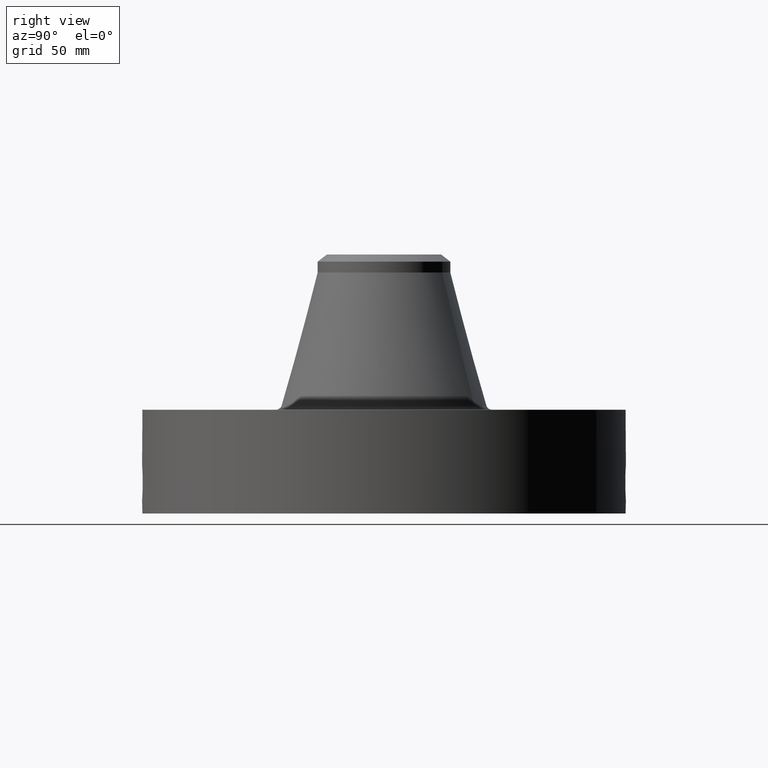
[diagram: clean part render]
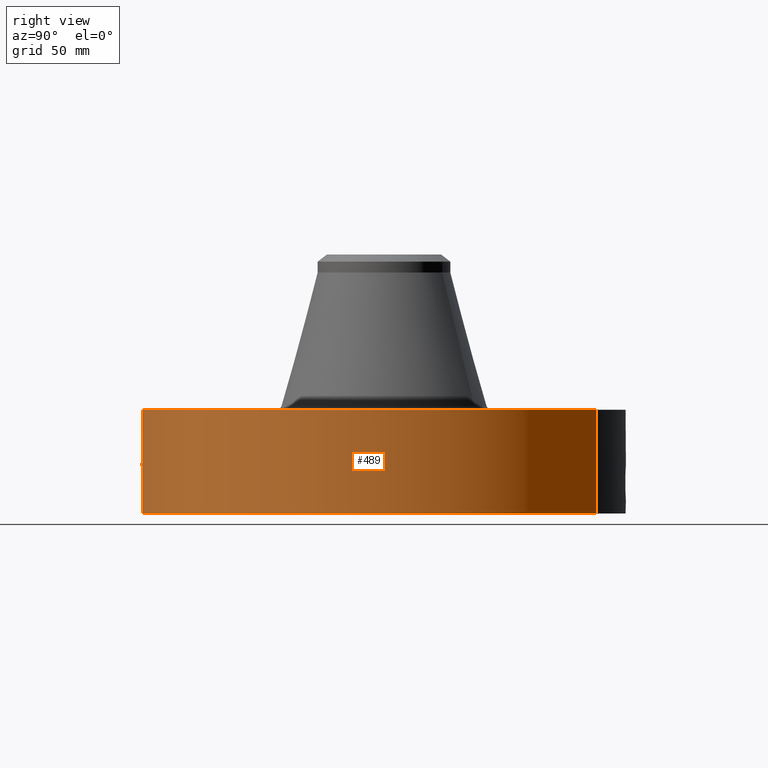
[diagram: same view with one face highlighted and labeled with its STEP entity id]
A machine part, right view. The second image highlights one B-rep face of the part: STEP entity #489.
In plain terms, the highlighted cylindrical surface (partial cylindrical patch) has radius 133.35 mm, axis along (0, 0, -1).
Its self-contained STEP definition (entity closure, byte-faithful):
#38=AXIS2_PLACEMENT_3D('Cylinder Axis2P3D',#35,#36,#37) ;
#168=AXIS2_PLACEMENT_3D('Circle Axis2P3D',#166,#167,$) ;
#394=AXIS2_PLACEMENT_3D('Circle Axis2P3D',#392,#393,$) ;
#35=CARTESIAN_POINT('Axis2P3D Location',(0.,0.,3.06000000001)) ;
#44=CARTESIAN_POINT('Vertex',(-2.51698407768,-4.60730844994,0.250000000001)) ;
#46=CARTESIAN_POINT('Vertex',(2.51698407768,4.60730844994,0.250000000001)) ;
#49=CARTESIAN_POINT('Line Origine',(-2.51698407768,-4.60730844994,1.37500000001)) ;
#53=CARTESIAN_POINT('Vertex',(-2.51698407768,-4.60730844994,2.50000000001)) ;
#60=CARTESIAN_POINT('Vertex',(2.51698407768,4.60730844994,2.50000000001)) ;
#63=CARTESIAN_POINT('Line Origine',(2.51698407768,4.60730844994,1.37500000001)) ;
#166=CARTESIAN_POINT('Axis2P3D Location',(0.,0.,0.250000000001)) ;
#392=CARTESIAN_POINT('Axis2P3D Location',(0.,0.,2.50000000001)) ;
#404=CARTESIAN_POINT('Control Point',(0.0642548901423,-5.24960677664,1.28822813093)) ;
#405=CARTESIAN_POINT('Control Point',(0.043311916498,-5.24986311745,1.29210073242)) ;
#406=CARTESIAN_POINT('Control Point',(0.022016585483,-5.24999704255,1.29407525178)) ;
#407=CARTESIAN_POINT('Control Point',(0.000716899920887,-5.24999995107,1.29411849726)) ;
#408=CARTESIAN_POINT('Vertex',(0.0642326860734,-5.24960731882,1.28823254207)) ;
#410=CARTESIAN_POINT('Vertex',(0.00071669753756,-5.2499999511,1.29411850753)) ;
#414=CARTESIAN_POINT('Control Point',(0.0642325648551,-5.24960704985,1.28823191245)) ;
#415=CARTESIAN_POINT('Control Point',(0.10136665857,-5.24915268859,1.28265408666)) ;
#416=CARTESIAN_POINT('Control Point',(0.137571209264,-5.24830196282,1.27041645814)) ;
#417=CARTESIAN_POINT('Control Point',(0.17070982714,-5.2472238522,1.25251500554)) ;
#418=CARTESIAN_POINT('Vertex',(0.17070982714,-5.2472238522,1.25251500554)) ;
#422=CARTESIAN_POINT('Control Point',(0.029224179225,-5.24991866104,0.531058913899)) ;
#423=CARTESIAN_POINT('Control Point',(0.0757986146101,-5.24965939995,0.537030414226)) ;
#424=CARTESIAN_POINT('Control Point',(0.12121015052,-5.24889011728,0.550520744826)) ;
#425=CARTESIAN_POINT('Control Point',(0.163721802299,-5.24767092096,0.571165603594)) ;
#426=CARTESIAN_POINT('Control Point',(0.257613173387,-5.2441092885,0.636326101976)) ;
#427=CARTESIAN_POINT('Control Point',(0.321981420754,-5.240272862,0.72990456857)) ;
#428=CARTESIAN_POINT('Control Point',(0.347591831252,-5.23849692534,0.791510173969)) ;
#429=CARTESIAN_POINT('Control Point',(0.367018695005,-5.23715940402,0.88879839248)) ;
#430=CARTESIAN_POINT('Control Point',(0.357452253207,-5.23781804436,0.985206805284)) ;
#431=CARTESIAN_POINT('Control Point',(0.350906070926,-5.23826917247,1.01733145379)) ;
#432=CARTESIAN_POINT('Control Point',(0.326667842368,-5.23988640253,1.09444810275)) ;
#433=CARTESIAN_POINT('Control Point',(0.283222018822,-5.24246131212,1.16305221699)) ;
#434=CARTESIAN_POINT('Control Point',(0.250890376029,-5.24419241091,1.19949220044)) ;
#435=CARTESIAN_POINT('Control Point',(0.212821081824,-5.24585383156,1.22976654196)) ;
#436=CARTESIAN_POINT('Control Point',(0.17070982714,-5.2472238522,1.25251500554)) ;
#437=CARTESIAN_POINT('Vertex',(0.029224179225,-5.24991866104,0.531058913899)) ;
#441=CARTESIAN_POINT('Control Point',(0.0292241792249,-5.24991866104,0.531058913899)) ;
#442=CARTESIAN_POINT('Control Point',(0.0194758727198,-5.24997292593,0.53085645789)) ;
#443=CARTESIAN_POINT('Control Point',(0.00972559835262,-5.25000000508,0.530961817463)) ;
#444=CARTESIAN_POINT('Control Point',(-2.72878355219E-006,-5.25000000002,0.531374667805)) ;
#445=CARTESIAN_POINT('Vertex',(-2.72878353824E-006,-5.25000000002,0.531374667805)) ;
#449=CARTESIAN_POINT('Control Point',(-0.194329401017,-5.24640220381,0.584290639301)) ;
#450=CARTESIAN_POINT('Control Point',(-0.134784125882,-5.24860779103,0.552218166307)) ;
#451=CARTESIAN_POINT('Control Point',(-0.0678213827925,-5.24999996477,0.534252755244)) ;
#452=CARTESIAN_POINT('Control Point',(-2.72878354287E-006,-5.25000000002,0.531374667805)) ;
#453=CARTESIAN_POINT('Vertex',(-0.194329401017,-5.24640220381,0.584290639301)) ;
#457=CARTESIAN_POINT('Control Point',(-0.194329401017,-5.24640220381,0.584290639301)) ;
#458=CARTESIAN_POINT('Control Point',(-0.245491765198,-5.24450712387,0.611847881307)) ;
#459=CARTESIAN_POINT('Control Point',(-0.292059527066,-5.24215771215,0.64798618751)) ;
#460=CARTESIAN_POINT('Control Point',(-0.332013433516,-5.23964260673,0.692108479084)) ;
#461=CARTESIAN_POINT('Control Point',(-0.391712510208,-5.23546450048,0.790666546892)) ;
#462=CARTESIAN_POINT('Control Point',(-0.411028571062,-5.23387653244,0.903977179975)) ;
#463=CARTESIAN_POINT('Control Point',(-0.40956363675,-5.23399901226,0.960037257921)) ;
#464=CARTESIAN_POINT('Control Point',(-0.384642365189,-5.23601093393,1.07097346926)) ;
#465=CARTESIAN_POINT('Control Point',(-0.321410488613,-5.24032086589,1.16370403188)) ;
#466=CARTESIAN_POINT('Control Point',(-0.280632350181,-5.24278573324,1.20396112123)) ;
#467=CARTESIAN_POINT('Control Point',(-0.201889890873,-5.24656145134,1.25790111907)) ;
#468=CARTESIAN_POINT('Control Point',(-0.112894673296,-5.24898233293,1.28620972518)) ;
#469=CARTESIAN_POINT('Control Point',(-0.0753579945617,-5.24966520065,1.29335685785)) ;
#470=CARTESIAN_POINT('Control Point',(-0.0374936902312,-5.25000018475,1.29599233588)) ;
#471=CARTESIAN_POINT('Control Point',(2.5857935531E-005,-5.24999999996,1.29415298436)) ;
#472=CARTESIAN_POINT('Vertex',(2.58579355203E-005,-5.24999999996,1.29415298436)) ;
#476=CARTESIAN_POINT('Control Point',(0.000716697526204,-5.2499999511,1.29411850751)) ;
#477=CARTESIAN_POINT('Control Point',(0.000371301062625,-5.24999999825,1.29413604943)) ;
#478=CARTESIAN_POINT('Control Point',(2.58579427931E-005,-5.24999999996,1.29415298436)) ;
#36=DIRECTION('Axis2P3D Direction',(0.,0.,-0.0393700787402)) ;
#37=DIRECTION('Axis2P3D XDirection',(0.0188750212049,0.0345504945626,0.)) ;
#50=DIRECTION('Vector Direction',(0.,0.,-0.0393700787402)) ;
#64=DIRECTION('Vector Direction',(0.,0.,-0.0393700787402)) ;
#167=DIRECTION('Axis2P3D Direction',(0.,0.,-0.0393700787402)) ;
#393=DIRECTION('Axis2P3D Direction',(0.,0.,-0.0393700787402)) ;
#51=VECTOR('Line Direction',#50,0.0393700787402) ;
#65=VECTOR('Line Direction',#64,0.0393700787402) ;
#398=ORIENTED_EDGE('',*,*,#170,.F.) ;
#399=ORIENTED_EDGE('',*,*,#67,.T.) ;
#400=ORIENTED_EDGE('',*,*,#396,.T.) ;
#401=ORIENTED_EDGE('',*,*,#55,.F.) ;
#481=ORIENTED_EDGE('',*,*,#412,.F.) ;
#482=ORIENTED_EDGE('',*,*,#420,.T.) ;
#483=ORIENTED_EDGE('',*,*,#439,.F.) ;
#484=ORIENTED_EDGE('',*,*,#447,.T.) ;
#485=ORIENTED_EDGE('',*,*,#455,.F.) ;
#486=ORIENTED_EDGE('',*,*,#474,.T.) ;
#487=ORIENTED_EDGE('',*,*,#479,.F.) ;
#488=FACE_BOUND('',#480,.T.) ;
#489=ADVANCED_FACE('PartBody',(#402,#488),#39,.T.) ;
#403=B_SPLINE_CURVE_WITH_KNOTS('',3,(#404,#405,#406,#407),.UNSPECIFIED.,.F.,.U.,(4,4),(4.1588657821,6.5218752663),.UNSPECIFIED.) ;
#413=B_SPLINE_CURVE_WITH_KNOTS('',3,(#414,#415,#416,#417),.UNSPECIFIED.,.F.,.U.,(4,4),(0.,4.21917109583),.UNSPECIFIED.) ;
#421=B_SPLINE_CURVE_WITH_KNOTS('',5,(#422,#423,#424,#425,#426,#427,#428,#429,#430,#431,#432,#433,#434,#435,#436),.UNSPECIFIED.,.F.,.U.,(6,3,3,3,6),(0.,8.16106327263,20.0085234357,26.0732239803,35.0091523428),.UNSPECIFIED.) ;
#440=B_SPLINE_CURVE_WITH_KNOTS('',3,(#441,#442,#443,#444),.UNSPECIFIED.,.F.,.U.,(4,4),(0.,1.01672393967),.UNSPECIFIED.) ;
#448=B_SPLINE_CURVE_WITH_KNOTS('',3,(#449,#450,#451,#452),.UNSPECIFIED.,.F.,.U.,(4,4),(0.,7.0878423665),.UNSPECIFIED.) ;
#456=B_SPLINE_CURVE_WITH_KNOTS('',5,(#457,#458,#459,#460,#461,#462,#463,#464,#465,#466,#467,#468,#469,#470,#471),.UNSPECIFIED.,.F.,.U.,(6,3,3,3,6),(0.,10.1500013288,19.679131155,29.7545946784,36.7677751323),.UNSPECIFIED.) ;
#475=B_SPLINE_CURVE_WITH_KNOTS('',2,(#476,#477,#478),.UNSPECIFIED.,.F.,.U.,(3,3),(1.08990104316,1.11572923357),.UNSPECIFIED.) ;
#169=CIRCLE('generated circle',#168,5.25000000002) ;
#395=CIRCLE('generated circle',#394,5.25000000002) ;
#39=CYLINDRICAL_SURFACE('generated cylinder',#38,5.25000000002) ;
#55=EDGE_CURVE('',#45,#54,#52,.F.) ;
#67=EDGE_CURVE('',#47,#61,#66,.F.) ;
#170=EDGE_CURVE('',#47,#45,#169,.T.) ;
#396=EDGE_CURVE('',#61,#54,#395,.T.) ;
#412=EDGE_CURVE('',#409,#411,#403,.T.) ;
#420=EDGE_CURVE('',#409,#419,#413,.T.) ;
#439=EDGE_CURVE('',#438,#419,#421,.T.) ;
#447=EDGE_CURVE('',#438,#446,#440,.T.) ;
#455=EDGE_CURVE('',#454,#446,#448,.T.) ;
#474=EDGE_CURVE('',#454,#473,#456,.T.) ;
#479=EDGE_CURVE('',#411,#473,#475,.T.) ;
#397=EDGE_LOOP('',(#398,#399,#400,#401)) ;
#480=EDGE_LOOP('',(#481,#482,#483,#484,#485,#486,#487)) ;
#402=FACE_OUTER_BOUND('',#397,.T.) ;
#52=LINE('Line',#49,#51) ;
#66=LINE('Line',#63,#65) ;
#45=VERTEX_POINT('',#44) ;
#47=VERTEX_POINT('',#46) ;
#54=VERTEX_POINT('',#53) ;
#61=VERTEX_POINT('',#60) ;
#409=VERTEX_POINT('',#408) ;
#411=VERTEX_POINT('',#410) ;
#419=VERTEX_POINT('',#418) ;
#438=VERTEX_POINT('',#437) ;
#446=VERTEX_POINT('',#445) ;
#454=VERTEX_POINT('',#453) ;
#473=VERTEX_POINT('',#472) ;